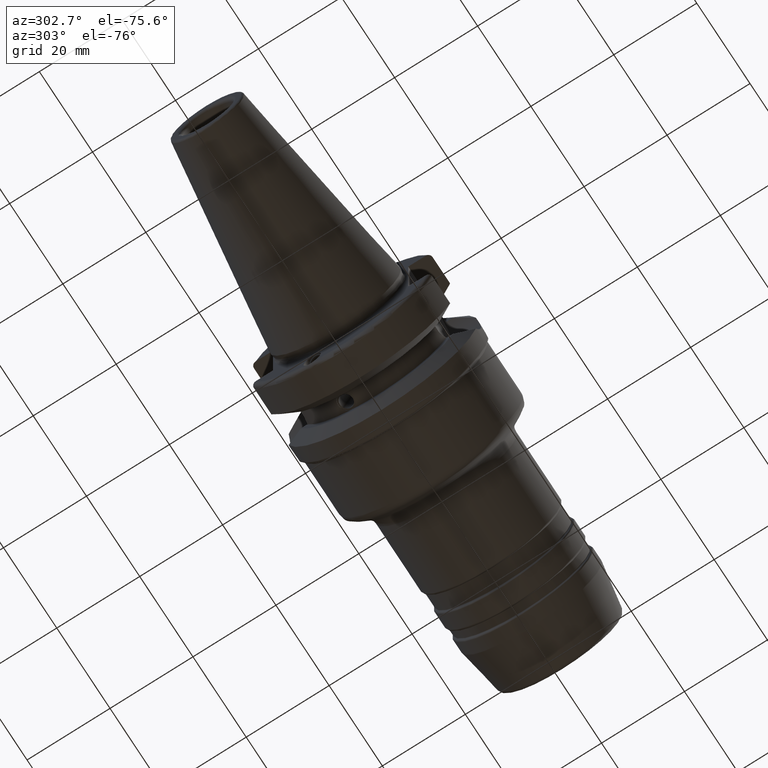
[diagram: clean part render]
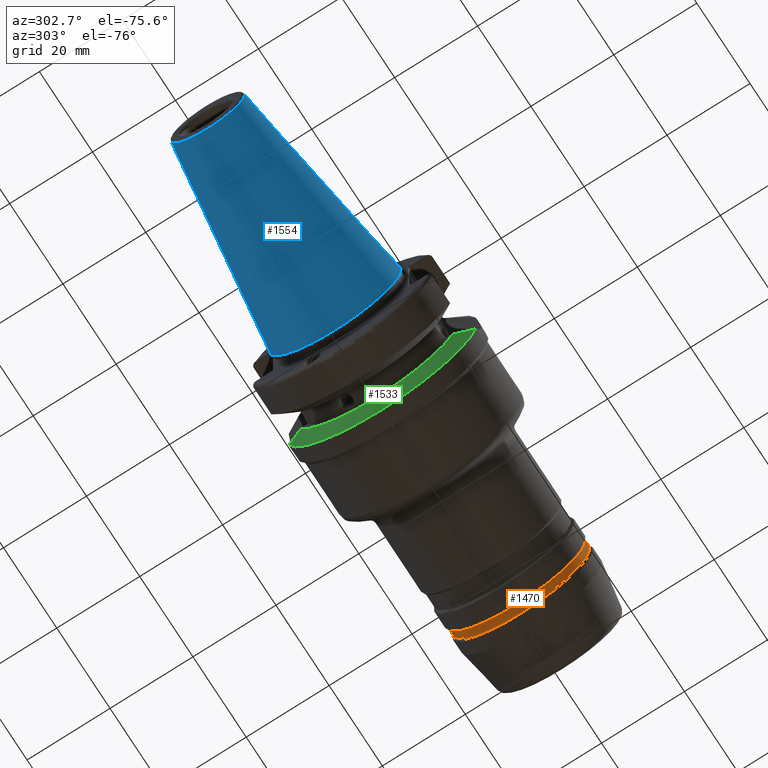
[diagram: same view with three faces highlighted in distinct colors, each labeled with its STEP entity id]
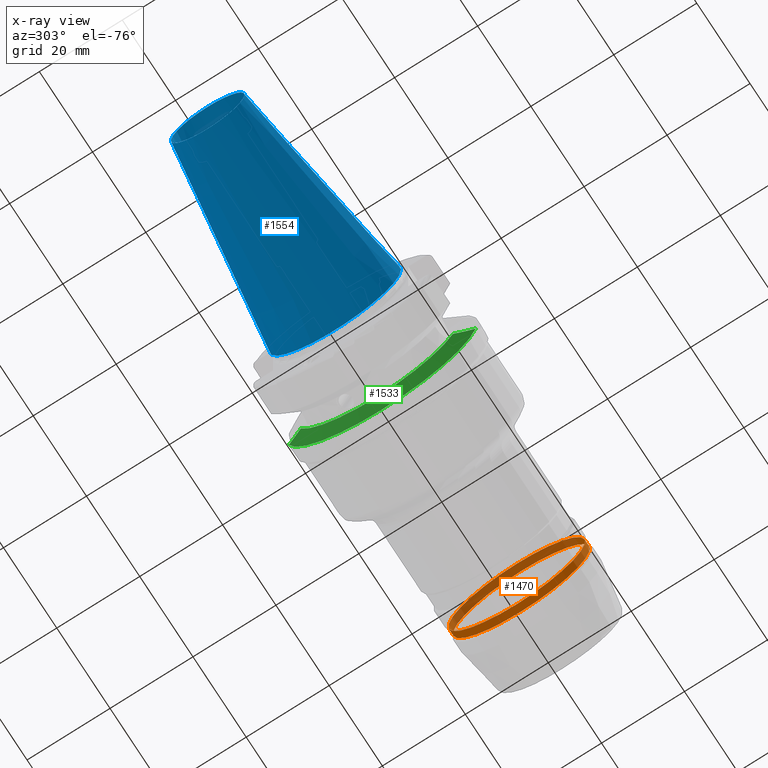
[diagram: x-ray of the same camera — body ghosted, the three highlighted faces saturated]
A machine part, auxiliary view with three faces highlighted in distinct colors.
The next image is the same camera in x-ray (body ghosted, the three faces saturated) — at least one of them is partly hidden behind the body in this view.
Their STEP definitions:

[orange] entity #1470 — the highlighted cylindrical surface (bore or boss wall) has radius 16.5 mm, axis along (1, 0, 0).
#117=LINE('',#2326,#190);
#190=VECTOR('',#1816,16.5);
#263=CYLINDRICAL_SURFACE('',#1589,16.5);
#302=FACE_OUTER_BOUND('',#395,.T.);
#395=EDGE_LOOP('',(#986,#987,#988,#989));
#498=CIRCLE('',#1586,16.5);
#501=CIRCLE('',#1590,16.5);
#604=VERTEX_POINT('',#2319);
#606=VERTEX_POINT('',#2325);
#748=EDGE_CURVE('',#604,#604,#498,.T.);
#751=EDGE_CURVE('',#604,#606,#117,.T.);
#752=EDGE_CURVE('',#606,#606,#501,.T.);
#986=ORIENTED_EDGE('',*,*,#748,.F.);
#987=ORIENTED_EDGE('',*,*,#751,.T.);
#988=ORIENTED_EDGE('',*,*,#752,.F.);
#989=ORIENTED_EDGE('',*,*,#751,.F.);
#1470=ADVANCED_FACE('',(#302),#263,.T.);
#1586=AXIS2_PLACEMENT_3D('',#2320,#1808,#1809);
#1589=AXIS2_PLACEMENT_3D('',#2324,#1814,#1815);
#1590=AXIS2_PLACEMENT_3D('',#2327,#1817,#1818);
#1808=DIRECTION('center_axis',(1.,0.,0.));
#1809=DIRECTION('ref_axis',(0.,1.22464679914735E-16,1.));
#1814=DIRECTION('center_axis',(1.,0.,0.));
#1815=DIRECTION('ref_axis',(0.,0.,-1.));
#1816=DIRECTION('',(-1.,0.,0.));
#1817=DIRECTION('center_axis',(-1.,0.,0.));
#1818=DIRECTION('ref_axis',(0.,1.22464679914735E-16,1.));
#2319=CARTESIAN_POINT('',(69.8845299461621,-2.02066721859313E-15,16.5));
#2320=CARTESIAN_POINT('Origin',(69.8845299461621,0.,0.));
#2324=CARTESIAN_POINT('Origin',(69.,0.,0.));
#2325=CARTESIAN_POINT('',(68.1154700538379,-2.02066721859313E-15,16.5));
#2326=CARTESIAN_POINT('',(69.,-2.02066721859313E-15,16.5));
#2327=CARTESIAN_POINT('Origin',(68.1154700538379,0.,0.));

[blue] entity #1554 — the highlighted conical surface has half-angle 8.297 deg.
#114=CONICAL_SURFACE('',#1789,12.3770304778568,0.144812498238939);
#187=LINE('',#3059,#260);
#260=VECTOR('',#2288,12.3770304778568);
#386=FACE_OUTER_BOUND('',#490,.T.);
#490=EDGE_LOOP('',(#1409,#1410,#1411,#1412,#1413));
#594=CIRCLE('',#1786,8.87906095571352);
#595=CIRCLE('',#1787,8.87906095571352);
#597=CIRCLE('',#1790,15.875);
#742=VERTEX_POINT('',#3051);
#743=VERTEX_POINT('',#3052);
#744=VERTEX_POINT('',#3057);
#969=EDGE_CURVE('',#742,#743,#594,.T.);
#970=EDGE_CURVE('',#743,#742,#595,.T.);
#972=EDGE_CURVE('',#744,#744,#597,.T.);
#973=EDGE_CURVE('',#744,#742,#187,.T.);
#1409=ORIENTED_EDGE('',*,*,#972,.F.);
#1410=ORIENTED_EDGE('',*,*,#973,.T.);
#1411=ORIENTED_EDGE('',*,*,#969,.T.);
#1412=ORIENTED_EDGE('',*,*,#970,.T.);
#1413=ORIENTED_EDGE('',*,*,#973,.F.);
#1554=ADVANCED_FACE('',(#386),#114,.T.);
#1786=AXIS2_PLACEMENT_3D('',#3053,#2278,#2279);
#1787=AXIS2_PLACEMENT_3D('',#3054,#2280,#2281);
#1789=AXIS2_PLACEMENT_3D('',#3056,#2284,#2285);
#1790=AXIS2_PLACEMENT_3D('',#3058,#2286,#2287);
#2278=DIRECTION('center_axis',(1.,1.62798202122572E-21,0.));
#2279=DIRECTION('ref_axis',(0.,0.,-1.));
#2280=DIRECTION('center_axis',(1.,1.62798202122572E-21,0.));
#2281=DIRECTION('ref_axis',(0.,0.,-1.));
#2284=DIRECTION('center_axis',(1.,1.62798202122572E-21,0.));
#2285=DIRECTION('ref_axis',(0.,1.,0.));
#2286=DIRECTION('center_axis',(1.,1.62798202122572E-21,0.));
#2287=DIRECTION('ref_axis',(0.,0.,-1.));
#2288=DIRECTION('',(-0.989532981063282,0.144306893071729,1.76724974695192E-17));
#3051=CARTESIAN_POINT('',(-47.9721534465359,-8.87906095571352,-1.08737135788488E-15));
#3052=CARTESIAN_POINT('',(-47.9721534465359,9.94286113939637E-16,8.87906095571352));
#3053=CARTESIAN_POINT('Origin',(-47.9721534465359,2.08165747182452E-15,
0.));
#3054=CARTESIAN_POINT('Origin',(-47.9721534465359,2.08165747182452E-15,
0.));
#3056=CARTESIAN_POINT('Origin',(-23.9860767232679,2.08169652072618E-15,
0.));
#3057=CARTESIAN_POINT('',(-8.88178419700125E-15,-15.875,-1.94412679364642E-15));
#3058=CARTESIAN_POINT('Origin',(-4.44089209850063E-15,2.08173556962785E-15,
0.));
#3059=CARTESIAN_POINT('',(-23.9860767232679,-12.3770304778568,-1.51574907576565E-15));

[green] entity #1533 — the highlighted conical surface has half-angle 60.125 deg.
#59=B_SPLINE_CURVE_WITH_KNOTS('',3,(#2865,#2866,#2867,#2868,#2869,#2870),
 .UNSPECIFIED.,.F.,.F.,(4,2,4),(7.68395213088373,8.02991733611869,8.17688748303414),
 .UNSPECIFIED.);
#65=B_SPLINE_CURVE_WITH_KNOTS('',3,(#2945,#2946,#2947,#2948,#2949,#2950),
 .UNSPECIFIED.,.F.,.F.,(4,2,4),(3.44756284108881,3.59453298800427,3.94049819323923),
 .UNSPECIFIED.);
#110=CONICAL_SURFACE('',#1748,21.2331286619655,1.04937921276159);
#365=FACE_OUTER_BOUND('',#467,.T.);
#467=EDGE_LOOP('',(#1303,#1304,#1305,#1306));
#574=CIRCLE('',#1745,23.);
#577=CIRCLE('',#1749,19.466257323931);
#710=VERTEX_POINT('',#2862);
#711=VERTEX_POINT('',#2864);
#720=VERTEX_POINT('',#2927);
#722=VERTEX_POINT('',#2943);
#909=EDGE_CURVE('',#710,#711,#59,.T.);
#926=EDGE_CURVE('',#711,#720,#574,.T.);
#930=EDGE_CURVE('',#710,#722,#577,.T.);
#931=EDGE_CURVE('',#720,#722,#65,.T.);
#1303=ORIENTED_EDGE('',*,*,#909,.F.);
#1304=ORIENTED_EDGE('',*,*,#930,.T.);
#1305=ORIENTED_EDGE('',*,*,#931,.F.);
#1306=ORIENTED_EDGE('',*,*,#926,.F.);
#1533=ADVANCED_FACE('',(#365),#110,.T.);
#1745=AXIS2_PLACEMENT_3D('',#2928,#2181,#2182);
#1748=AXIS2_PLACEMENT_3D('',#2942,#2187,#2188);
#1749=AXIS2_PLACEMENT_3D('',#2944,#2189,#2190);
#2181=DIRECTION('center_axis',(1.,1.62798202122572E-21,0.));
#2182=DIRECTION('ref_axis',(0.,0.,-1.));
#2187=DIRECTION('center_axis',(1.,1.62798202122572E-21,0.));
#2188=DIRECTION('ref_axis',(0.,1.,0.));
#2189=DIRECTION('center_axis',(1.,1.62798202122572E-21,0.));
#2190=DIRECTION('ref_axis',(0.,0.,-1.));
#2862=CARTESIAN_POINT('',(15.6,-18.3236233917175,-6.57114906237867));
#2864=CARTESIAN_POINT('',(17.6299409595063,-22.5570191120744,-4.49231441213885));
#2865=CARTESIAN_POINT('Ctrl Pts',(15.6,-18.3236233917175,-6.57114906237867));
#2866=CARTESIAN_POINT('Ctrl Pts',(16.1098572405085,-19.3959223553921,-6.21035429941431));
#2867=CARTESIAN_POINT('Ctrl Pts',(16.6013448473778,-20.4213600687136,-5.77346727707879));
#2868=CARTESIAN_POINT('Ctrl Pts',(17.2377433516599,-21.744048580855,-5.03500381733928));
#2869=CARTESIAN_POINT('Ctrl Pts',(17.4363948664282,-22.1561594342104,-4.78011182703288));
#2870=CARTESIAN_POINT('Ctrl Pts',(17.6299409595063,-22.5570191120744,-4.49231441213885));
#2927=CARTESIAN_POINT('',(17.6299409595063,22.5570191120744,-4.49231441213885));
#2928=CARTESIAN_POINT('Origin',(17.6299409595063,2.08176427085476E-15,0.));
#2942=CARTESIAN_POINT('Origin',(16.6149704797531,2.08176261850107E-15,0.));
#2943=CARTESIAN_POINT('',(15.6,18.3236233917175,-6.57114906237867));
#2944=CARTESIAN_POINT('Origin',(15.6,2.08176096614738E-15,0.));
#2945=CARTESIAN_POINT('Ctrl Pts',(17.6299409595063,22.5570191120744,-4.49231441213885));
#2946=CARTESIAN_POINT('Ctrl Pts',(17.4363948664282,22.1561594342104,-4.78011182703289));
#2947=CARTESIAN_POINT('Ctrl Pts',(17.2377433516599,21.744048580855,-5.03500381733928));
#2948=CARTESIAN_POINT('Ctrl Pts',(16.6013448473778,20.4213600687136,-5.77346727707879));
#2949=CARTESIAN_POINT('Ctrl Pts',(16.1098572405085,19.3959223553921,-6.21035429941431));
#2950=CARTESIAN_POINT('Ctrl Pts',(15.6,18.3236233917175,-6.57114906237867));